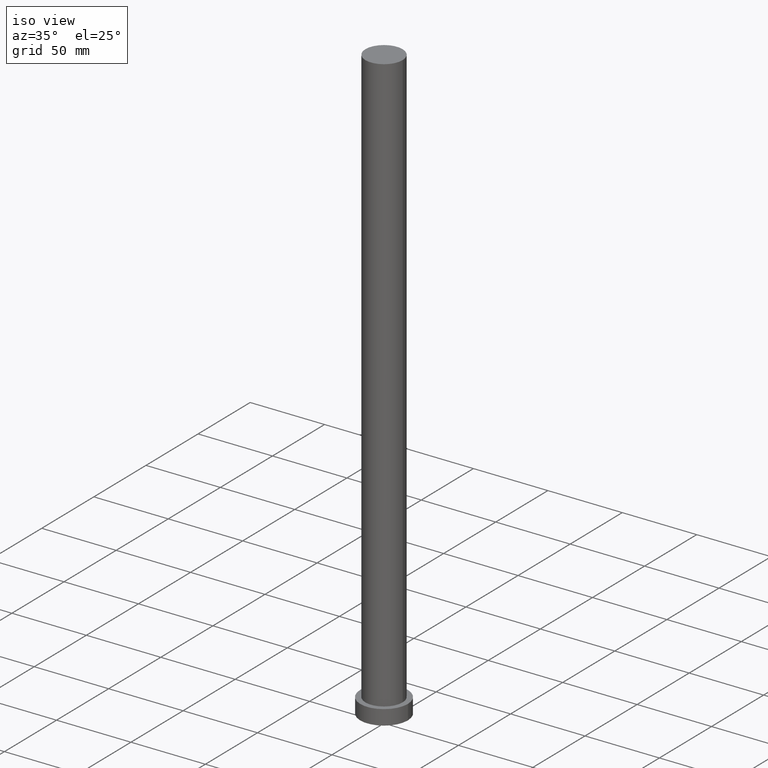
[diagram: clean part render]
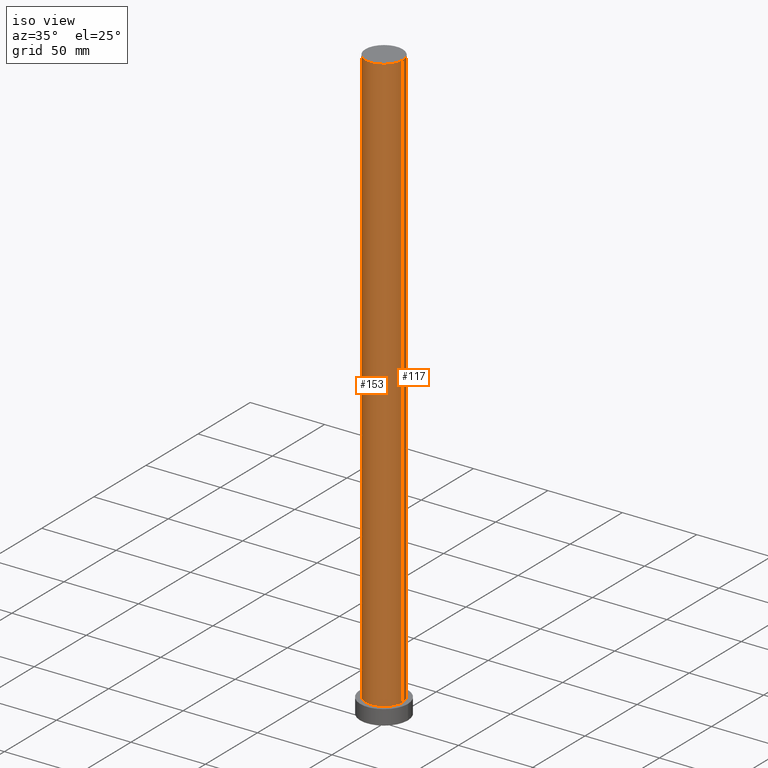
[diagram: same view with one multi-face feature highlighted, each face labeled with its STEP entity id]
A machine part, iso view. The highlighted faces form ONE feature: a constant-radius fillet chain: 2 tangent blend faces with common blend radius 12.5 mm. The faces share edges in the B-rep.
Their STEP definitions:
[1] entity #117 (Cylinder):
#1 = ORIENTED_EDGE ( 'NONE', *, *, #134, .F. ) ;
#2 = EDGE_CURVE ( 'NONE', #248, #158, #169, .T. ) ;
#4 = ORIENTED_EDGE ( 'NONE', *, *, #129, .T. ) ;
#9 = DIRECTION ( 'NONE',  ( 0.000000000000000000, 0.000000000000000000, 1.000000000000000000 ) ) ;
#10 = EDGE_CURVE ( 'NONE', #148, #158, #26, .T. ) ;
#25 = VERTEX_POINT ( 'NONE', #170 ) ;
#26 = CIRCLE ( 'NONE', #54, 12.50000000000000000 ) ;
#32 = AXIS2_PLACEMENT_3D ( 'NONE', #70, #151, #52 ) ;
#38 = DIRECTION ( 'NONE',  ( -0.000000000000000000, -0.000000000000000000, -1.000000000000000000 ) ) ;
#50 = DIRECTION ( 'NONE',  ( 1.000000000000000000, 0.000000000000000000, 0.000000000000000000 ) ) ;
#52 = DIRECTION ( 'NONE',  ( -1.000000000000000000, 0.000000000000000000, 0.000000000000000000 ) ) ;
#54 = AXIS2_PLACEMENT_3D ( 'NONE', #218, #9, #249 ) ;
#70 = CARTESIAN_POINT ( 'NONE',  ( 0.000000000000000000, 0.000000000000000000, 400.0000000000000000 ) ) ;
#72 = CARTESIAN_POINT ( 'NONE',  ( -12.50000000000000000, 0.000000000000000000, 400.0000000000000000 ) ) ;
#73 = CARTESIAN_POINT ( 'NONE',  ( -12.50000000000000000, 0.000000000000000000, 10.00000000000000000 ) ) ;
#81 = DIRECTION ( 'NONE',  ( -0.000000000000000000, -0.000000000000000000, -1.000000000000000000 ) ) ;
#90 = CYLINDRICAL_SURFACE ( 'NONE', #32, 12.50000000000000000 ) ;
#92 = CARTESIAN_POINT ( 'NONE',  ( 12.50000000000000000, 1.530808498934191521E-15, 10.00000000000000000 ) ) ;
#94 = CIRCLE ( 'NONE', #234, 12.50000000000000000 ) ;
#96 = EDGE_LOOP ( 'NONE', ( #1, #4, #206, #119 ) ) ;
#105 = FACE_OUTER_BOUND ( 'NONE', #96, .T. ) ;
#106 = VECTOR ( 'NONE', #38, 1000.000000000000000 ) ;
#111 = CARTESIAN_POINT ( 'NONE',  ( 12.50000000000000000, 1.530808498934191521E-15, 400.0000000000000000 ) ) ;
#112 = DIRECTION ( 'NONE',  ( 0.000000000000000000, 0.000000000000000000, 1.000000000000000000 ) ) ;
#117 = ADVANCED_FACE ( 'NONE', ( #105 ), #90, .T. ) ;
#119 = ORIENTED_EDGE ( 'NONE', *, *, #2, .F. ) ;
#129 = EDGE_CURVE ( 'NONE', #25, #148, #251, .T. ) ;
#134 = EDGE_CURVE ( 'NONE', #25, #248, #94, .T. ) ;
#146 = CARTESIAN_POINT ( 'NONE',  ( -12.50000000000000000, 0.000000000000000000, 400.0000000000000000 ) ) ;
#148 = VERTEX_POINT ( 'NONE', #92 ) ;
#151 = DIRECTION ( 'NONE',  ( -0.000000000000000000, -0.000000000000000000, -1.000000000000000000 ) ) ;
#158 = VERTEX_POINT ( 'NONE', #73 ) ;
#169 = LINE ( 'NONE', #146, #186 ) ;
#170 = CARTESIAN_POINT ( 'NONE',  ( 12.50000000000000000, 1.530808498934191521E-15, 400.0000000000000000 ) ) ;
#173 = CARTESIAN_POINT ( 'NONE',  ( 0.000000000000000000, 0.000000000000000000, 400.0000000000000000 ) ) ;
#186 = VECTOR ( 'NONE', #81, 1000.000000000000000 ) ;
#206 = ORIENTED_EDGE ( 'NONE', *, *, #10, .T. ) ;
#218 = CARTESIAN_POINT ( 'NONE',  ( 0.000000000000000000, 0.000000000000000000, 10.00000000000000000 ) ) ;
#234 = AXIS2_PLACEMENT_3D ( 'NONE', #173, #112, #50 ) ;
#248 = VERTEX_POINT ( 'NONE', #72 ) ;
#249 = DIRECTION ( 'NONE',  ( 1.000000000000000000, 0.000000000000000000, 0.000000000000000000 ) ) ;
#251 = LINE ( 'NONE', #111, #106 ) ;
[2] entity #153 (Cylinder):
#2 = EDGE_CURVE ( 'NONE', #248, #158, #169, .T. ) ;
#15 = DIRECTION ( 'NONE',  ( 1.000000000000000000, 0.000000000000000000, 0.000000000000000000 ) ) ;
#17 = DIRECTION ( 'NONE',  ( -1.000000000000000000, 0.000000000000000000, 0.000000000000000000 ) ) ;
#25 = VERTEX_POINT ( 'NONE', #170 ) ;
#31 = CARTESIAN_POINT ( 'NONE',  ( 0.000000000000000000, 0.000000000000000000, 10.00000000000000000 ) ) ;
#38 = DIRECTION ( 'NONE',  ( -0.000000000000000000, -0.000000000000000000, -1.000000000000000000 ) ) ;
#47 = EDGE_CURVE ( 'NONE', #158, #148, #207, .T. ) ;
#64 = DIRECTION ( 'NONE',  ( 1.000000000000000000, 0.000000000000000000, 0.000000000000000000 ) ) ;
#71 = DIRECTION ( 'NONE',  ( -0.000000000000000000, -0.000000000000000000, -1.000000000000000000 ) ) ;
#72 = CARTESIAN_POINT ( 'NONE',  ( -12.50000000000000000, 0.000000000000000000, 400.0000000000000000 ) ) ;
#73 = CARTESIAN_POINT ( 'NONE',  ( -12.50000000000000000, 0.000000000000000000, 10.00000000000000000 ) ) ;
#78 = ORIENTED_EDGE ( 'NONE', *, *, #161, .F. ) ;
#81 = DIRECTION ( 'NONE',  ( -0.000000000000000000, -0.000000000000000000, -1.000000000000000000 ) ) ;
#83 = AXIS2_PLACEMENT_3D ( 'NONE', #252, #71, #17 ) ;
#86 = AXIS2_PLACEMENT_3D ( 'NONE', #31, #191, #64 ) ;
#92 = CARTESIAN_POINT ( 'NONE',  ( 12.50000000000000000, 1.530808498934191521E-15, 10.00000000000000000 ) ) ;
#93 = FACE_OUTER_BOUND ( 'NONE', #167, .T. ) ;
#99 = AXIS2_PLACEMENT_3D ( 'NONE', #152, #235, #15 ) ;
#106 = VECTOR ( 'NONE', #38, 1000.000000000000000 ) ;
#111 = CARTESIAN_POINT ( 'NONE',  ( 12.50000000000000000, 1.530808498934191521E-15, 400.0000000000000000 ) ) ;
#122 = ORIENTED_EDGE ( 'NONE', *, *, #129, .F. ) ;
#129 = EDGE_CURVE ( 'NONE', #25, #148, #251, .T. ) ;
#146 = CARTESIAN_POINT ( 'NONE',  ( -12.50000000000000000, 0.000000000000000000, 400.0000000000000000 ) ) ;
#148 = VERTEX_POINT ( 'NONE', #92 ) ;
#152 = CARTESIAN_POINT ( 'NONE',  ( 0.000000000000000000, 0.000000000000000000, 400.0000000000000000 ) ) ;
#153 = ADVANCED_FACE ( 'NONE', ( #93 ), #175, .T. ) ;
#156 = ORIENTED_EDGE ( 'NONE', *, *, #2, .T. ) ;
#158 = VERTEX_POINT ( 'NONE', #73 ) ;
#161 = EDGE_CURVE ( 'NONE', #248, #25, #204, .T. ) ;
#167 = EDGE_LOOP ( 'NONE', ( #122, #78, #156, #215 ) ) ;
#169 = LINE ( 'NONE', #146, #186 ) ;
#170 = CARTESIAN_POINT ( 'NONE',  ( 12.50000000000000000, 1.530808498934191521E-15, 400.0000000000000000 ) ) ;
#175 = CYLINDRICAL_SURFACE ( 'NONE', #83, 12.50000000000000000 ) ;
#186 = VECTOR ( 'NONE', #81, 1000.000000000000000 ) ;
#191 = DIRECTION ( 'NONE',  ( 0.000000000000000000, 0.000000000000000000, 1.000000000000000000 ) ) ;
#204 = CIRCLE ( 'NONE', #99, 12.50000000000000000 ) ;
#207 = CIRCLE ( 'NONE', #86, 12.50000000000000000 ) ;
#215 = ORIENTED_EDGE ( 'NONE', *, *, #47, .T. ) ;
#235 = DIRECTION ( 'NONE',  ( 0.000000000000000000, 0.000000000000000000, 1.000000000000000000 ) ) ;
#248 = VERTEX_POINT ( 'NONE', #72 ) ;
#251 = LINE ( 'NONE', #111, #106 ) ;
#252 = CARTESIAN_POINT ( 'NONE',  ( 0.000000000000000000, 0.000000000000000000, 400.0000000000000000 ) ) ;